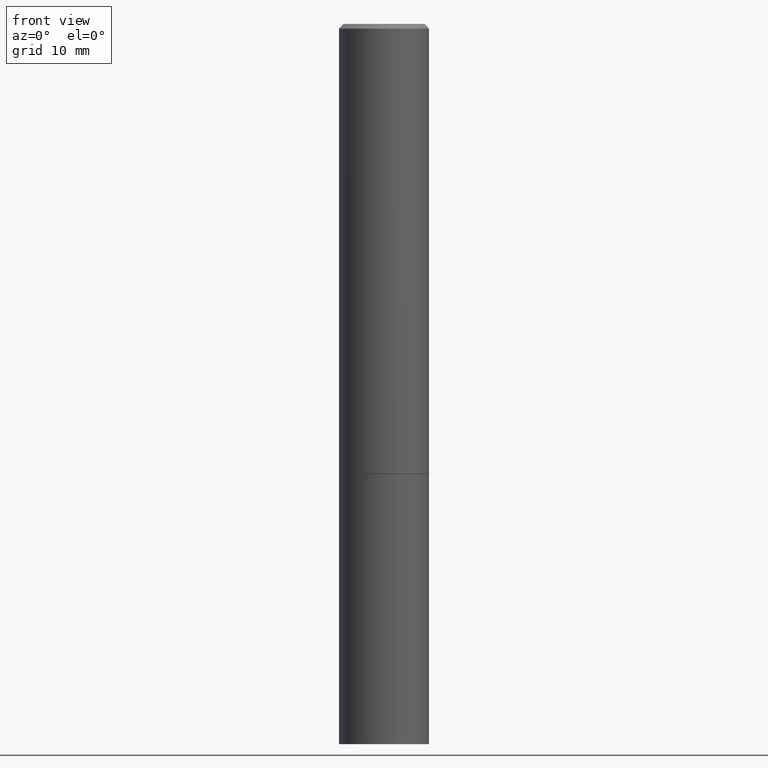
[diagram: clean part render]
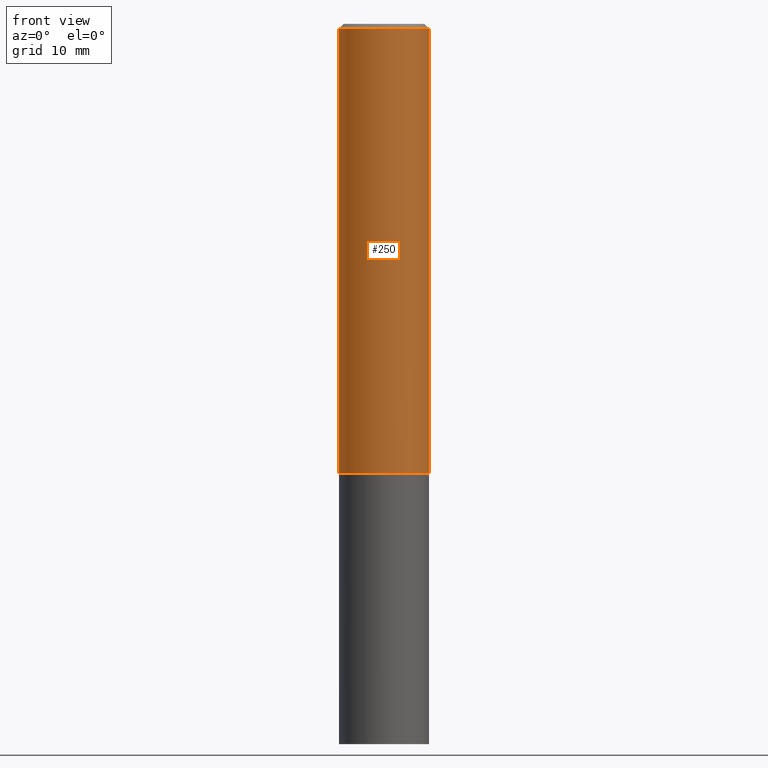
[diagram: same view with one face highlighted and labeled with its STEP entity id]
A machine part, front view. The second image highlights one B-rep face of the part: STEP entity #250.
In plain terms, the highlighted cylindrical surface (partial cylindrical patch) has radius 4.7625 mm, axis along (-0, 0, 1).
Its self-contained STEP definition (entity closure, byte-faithful):
#2 = CIRCLE ( 'NONE', #280, 0.1875000000000000278 ) ;
#17 = CARTESIAN_POINT ( 'NONE',  ( 4.890937612370283668E-31, -6.982962677686305168E-17, -0.02000000000000004205 ) ) ;
#40 = ORIENTED_EDGE ( 'NONE', *, *, #74, .T. ) ;
#43 = VERTEX_POINT ( 'NONE', #282 ) ;
#49 = DIRECTION ( 'NONE',  ( -2.445468806185136877E-29, 3.491481338843145188E-15, 1.000000000000000000 ) ) ;
#51 = CYLINDRICAL_SURFACE ( 'NONE', #254, 0.1874999999999999167 ) ;
#59 = DIRECTION ( 'NONE',  ( -2.445468806185136877E-29, 3.491481338843145188E-15, 1.000000000000000000 ) ) ;
#74 = EDGE_CURVE ( 'NONE', #130, #43, #202, .T. ) ;
#79 = VERTEX_POINT ( 'NONE', #134 ) ;
#86 = DIRECTION ( 'NONE',  ( 1.000000000000000000, -6.982962677686265922E-15, 4.876176775795935793E-29 ) ) ;
#87 = DIRECTION ( 'NONE',  ( 1.000000000000000000, -6.982962677686266711E-15, 0.000000000000000000 ) ) ;
#89 = DIRECTION ( 'NONE',  ( 1.000000000000000000, -6.982962677686265133E-15, 0.000000000000000000 ) ) ;
#100 = EDGE_CURVE ( 'NONE', #79, #43, #115, .T. ) ;
#115 = CIRCLE ( 'NONE', #178, 0.1874999999999997780 ) ;
#117 = ORIENTED_EDGE ( 'NONE', *, *, #144, .F. ) ;
#130 = VERTEX_POINT ( 'NONE', #151 ) ;
#134 = CARTESIAN_POINT ( 'NONE',  ( -0.1874999999999997780, 1.239475875289310330E-15, -0.02000000000000004205 ) ) ;
#143 = DIRECTION ( 'NONE',  ( -2.445468806185136597E-29, 3.491481338843145583E-15, 1.000000000000000000 ) ) ;
#144 = EDGE_CURVE ( 'NONE', #246, #79, #315, .T. ) ;
#148 = ORIENTED_EDGE ( 'NONE', *, *, #100, .F. ) ;
#151 = CARTESIAN_POINT ( 'NONE',  ( 0.1875000000000000278, -7.852341531058230708E-15, -1.874000000000000110 ) ) ;
#171 = VECTOR ( 'NONE', #49, 39.37007874015748143 ) ;
#178 = AXIS2_PLACEMENT_3D ( 'NONE', #17, #334, #89 ) ;
#196 = CARTESIAN_POINT ( 'NONE',  ( -0.1874999999999999722, -1.974165198334270073E-15, -1.874000000000000110 ) ) ;
#202 = LINE ( 'NONE', #355, #206 ) ;
#206 = VECTOR ( 'NONE', #59, 39.37007874015748143 ) ;
#213 = EDGE_LOOP ( 'NONE', ( #117, #283, #40, #148 ) ) ;
#224 = FACE_OUTER_BOUND ( 'NONE', #213, .T. ) ;
#230 = CARTESIAN_POINT ( 'NONE',  ( 4.582808542790945516E-29, -6.543036028992054911E-15, -1.874000000000000110 ) ) ;
#246 = VERTEX_POINT ( 'NONE', #196 ) ;
#250 = ADVANCED_FACE ( 'NONE', ( #224 ), #51, .T. ) ;
#254 = AXIS2_PLACEMENT_3D ( 'NONE', #284, #143, #86 ) ;
#280 = AXIS2_PLACEMENT_3D ( 'NONE', #230, #331, #87 ) ;
#282 = CARTESIAN_POINT ( 'NONE',  ( 0.1874999999999997780, -1.356173001359023691E-15, -0.02000000000000004205 ) ) ;
#283 = ORIENTED_EDGE ( 'NONE', *, *, #296, .T. ) ;
#284 = CARTESIAN_POINT ( 'NONE',  ( 0.000000000000000000, 0.000000000000000000, 0.000000000000000000 ) ) ;
#296 = EDGE_CURVE ( 'NONE', #246, #130, #2, .T. ) ;
#297 = CARTESIAN_POINT ( 'NONE',  ( -0.1874999999999999167, 1.332267629550187257E-15, -9.223003294227943787E-30 ) ) ;
#315 = LINE ( 'NONE', #297, #171 ) ;
#331 = DIRECTION ( 'NONE',  ( -2.445468806185136597E-29, 3.491481338843145583E-15, 1.000000000000000000 ) ) ;
#334 = DIRECTION ( 'NONE',  ( -2.445468806185136597E-29, 3.491481338843145583E-15, 1.000000000000000000 ) ) ;
#355 = CARTESIAN_POINT ( 'NONE',  ( 0.1874999999999999167, -1.309305502066174219E-15, 9.142831454617375408E-30 ) ) ;